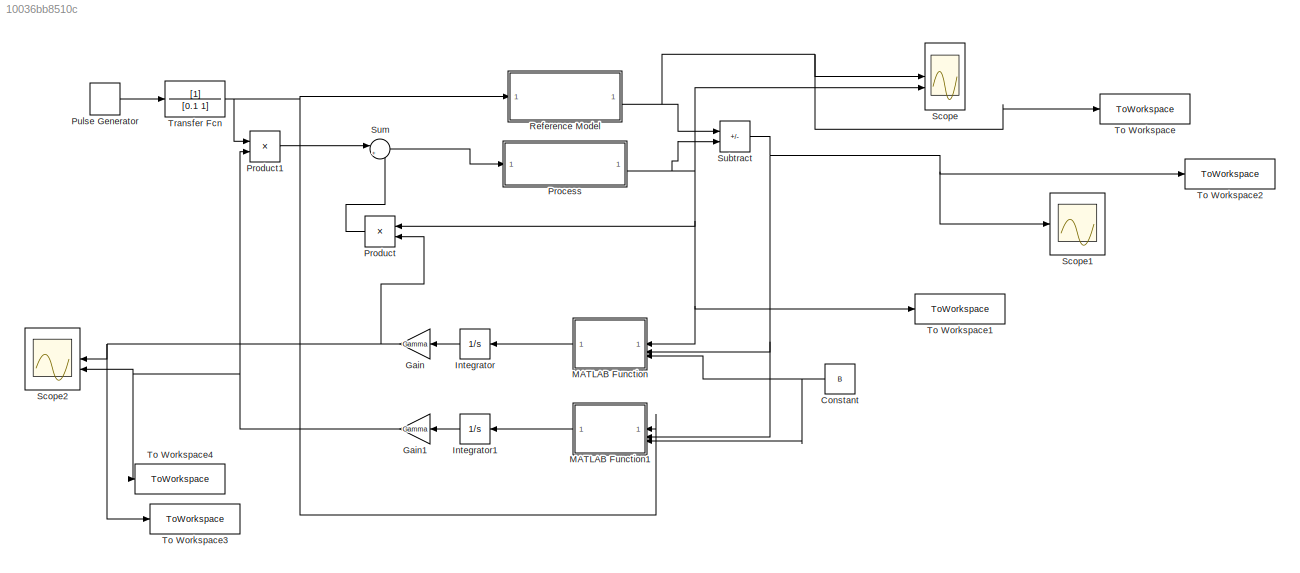
MODEL slx_10036bb8510c
KIND model
CONFIG AbsTol = auto
CONFIG EnableMultiTasking = off
CONFIG FixedStep = 0.001
CONFIG MaxStep = auto
CONFIG MinStep = auto
CONFIG RelTol = 1e-3
CONFIG SampleTimeConstraint = Unconstrained
CONFIG SolverName = ode1be
CONFIG StartTime = 0.0
CONFIG StopTime = 500
BLOCK [Constant] Constant
  NameLocation = top
  Value = B
BLOCK [Gain] Gain
  Gain = Gamma
  NameLocation = top
BLOCK [Gain] Gain1
  Gain = Gamma
  NameLocation = top
BLOCK [Integrator] Integrator
BLOCK [Integrator] Integrator1
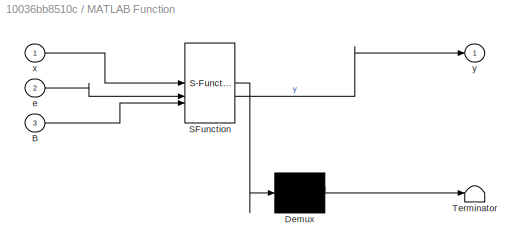
BLOCK [SubSystem] MATLAB Function
  ErrorFcn = Stateflow.Translate.translate
  NameLocation = top
  PermitHierarchicalResolution = ExplicitOnly
  SFBlockType = MATLAB Function
  TreatAsAtomicUnit = on
BLOCK [Demux] MATLAB Function/ Demux 
  Outputs = 1
BLOCK [S-Function] MATLAB Function/ SFunction 
  EnableBusSupport = off
  FunctionName = sf_sfun
  PortCounts = [3 2]
  SFcnIsStateOwnerBlock = off
  SFunctionDeploymentMode = off
  Tag = Stateflow S-Function 2
BLOCK [Terminator] MATLAB Function/ Terminator 
BLOCK [Inport] MATLAB Function/B
  Port = 3
BLOCK [Inport] MATLAB Function/e
  Port = 2
BLOCK [Inport] MATLAB Function/x
BLOCK [Outport] MATLAB Function/y
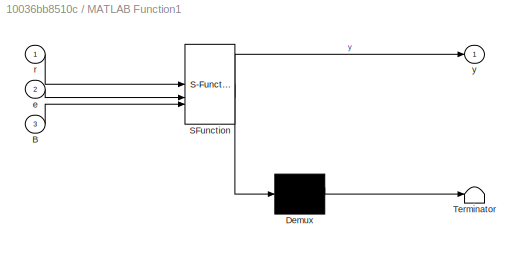
BLOCK [SubSystem] MATLAB Function1
  ErrorFcn = Stateflow.Translate.translate
  NameLocation = top
  PermitHierarchicalResolution = ExplicitOnly
  SFBlockType = MATLAB Function
  TreatAsAtomicUnit = on
BLOCK [Demux] MATLAB Function1/ Demux 
  Outputs = 1
BLOCK [S-Function] MATLAB Function1/ SFunction 
  EnableBusSupport = off
  FunctionName = sf_sfun
  PortCounts = [3 2]
  SFcnIsStateOwnerBlock = off
  SFunctionDeploymentMode = off
  Tag = Stateflow S-Function 1
BLOCK [Terminator] MATLAB Function1/ Terminator 
BLOCK [Inport] MATLAB Function1/B
  Port = 3
BLOCK [Inport] MATLAB Function1/e
  Port = 2
BLOCK [Inport] MATLAB Function1/r
BLOCK [Outport] MATLAB Function1/y
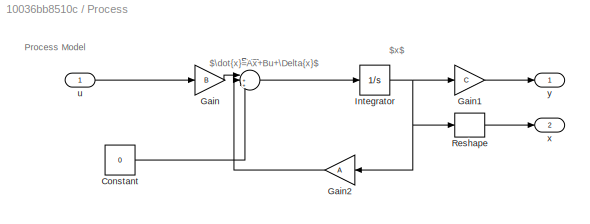
BLOCK [SubSystem] Process
BLOCK [Constant] Process/Constant
  Value = 0
BLOCK [Gain] Process/Gain
  Gain = B
  Multiplication = Matrix(K*u)
BLOCK [Gain] Process/Gain1
  Gain = C
  Multiplication = Matrix(K*u)
BLOCK [Gain] Process/Gain2
  Gain = A
  Multiplication = Matrix(K*u)
  NameLocation = top
BLOCK [Integrator] Process/Integrator
BLOCK [Reshape] Process/Reshape
  OutputDimensionality = Column vector (2-D)
BLOCK [Sum] Process/Sum
  Inputs = |+++
BLOCK [Inport] Process/u
BLOCK [Outport] Process/x
  Port = 2
BLOCK [Outport] Process/y
BLOCK [Product] Product
  NameLocation = top
BLOCK [Product] Product1
BLOCK [DiscretePulseGenerator] Pulse Generator
  Period = 25
  PulseType = Time based
  PulseWidth = 50
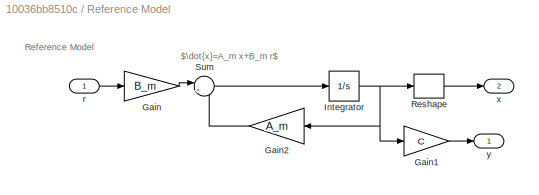
BLOCK [SubSystem] Reference Model
BLOCK [Gain] Reference Model/Gain
  Gain = B_m
  Multiplication = Matrix(K*u)
BLOCK [Gain] Reference Model/Gain1
  Gain = C
  Multiplication = Matrix(K*u)
BLOCK [Gain] Reference Model/Gain2
  Gain = A_m
  Multiplication = Matrix(K*u)
  NameLocation = top
BLOCK [Integrator] Reference Model/Integrator
BLOCK [Reshape] Reference Model/Reshape
  OutputDimensionality = Column vector (2-D)
BLOCK [Sum] Reference Model/Sum
  Inputs = |++
BLOCK [Inport] Reference Model/r
BLOCK [Outport] Reference Model/x
  Port = 2
BLOCK [Outport] Reference Model/y
BLOCK [Scope] Scope
  ActiveDisplayYMaximum = 1.2037276009533862
  ActiveDisplayYMinimum = -0.13374751121704287
  Floating = off
  GraphicalSettings = {"Style":{"BackgroundColor":[0.12941176470588237,0.12941176470588237,0.12941176470588237],"AxesColor":[0.07058823529411765,0.07058823529411765,0.07058823529411765],"LabelsColor":[0.8509803921568627,0.8509803921568627,0.8509803921568627],"PreserveColors":false,"Visible":[true,true],"LineStyle":["-","-"],"LineWidth":[1.5,1.5],"BarWidth":[0.9,0.9],"LineColor":["auto","auto"],"LineFaceAlpha":[1,1],"Li...<+2138ch>
  MultipleDisplayCache = [{"MaxYLimMag":1.2037276009533862,"MaxYLimReal":1.2037276009533862,"MinYLimMag":0,"MinYLimReal":-0.13374751121704287,"PlotAsMagnitudePhase":false,"ShowGrid":true,"ShowLegend":true,"Title":"%<SignalLabel>","YLabel":""}]
  NumInputPorts = 2
  ScopeFrameLocation = window
  ShowLegend = on
  WasSavedAsWebScope = on
  WindowPosition = [1199.000000,286.000000,1876.000000,669.000000,]
BLOCK [Scope] Scope1
  ActiveDisplayYMaximum = 0.873695940366499
  ActiveDisplayYMinimum = -0.90995340165672234
  DataLoggingVariableName = ScopeData1
  Floating = off
  GraphicalSettings = {"Style":{"BackgroundColor":[0.12941176470588237,0.12941176470588237,0.12941176470588237],"AxesColor":[0.07058823529411765,0.07058823529411765,0.07058823529411765],"LabelsColor":[0.8509803921568627,0.8509803921568627,0.8509803921568627],"PreserveColors":false,"Visible":[true,true],"LineStyle":["-","-"],"LineWidth":[1.5,1.5],"BarWidth":[0.9,0.9],"LineColor":["auto","auto"],"LineFaceAlpha":[1,1],"Li...<+2116ch>
  MultipleDisplayCache = [{"MaxYLimMag":0.90995340165672234,"MaxYLimReal":0.873695940366499,"MinYLimMag":0,"MinYLimReal":-0.90995340165672234,"PlotAsMagnitudePhase":false,"ShowGrid":true,"ShowLegend":true,"Title":"%<SignalLabel>","YLabel":""}]
  NumInputPorts = 2
  ScopeFrameLocation = window
  ShowLegend = on
  WasSavedAsWebScope = on
  WindowPosition = [1411.000000,117.000000,1613.000000,921.000000,]
BLOCK [Scope] Scope2
  ActiveDisplayYMaximum = 4.2607744567599939
  ActiveDisplayYMinimum = -2.938777719570826
  DataLoggingVariableName = ScopeData2
  Floating = off
  GraphicalSettings = {"Style":{"BackgroundColor":[0.12941176470588237,0.12941176470588237,0.12941176470588237],"AxesColor":[0.07058823529411765,0.07058823529411765,0.07058823529411765],"LabelsColor":[0.8509803921568627,0.8509803921568627,0.8509803921568627],"PreserveColors":false,"Visible":[true,true],"LineStyle":["-","-"],"LineWidth":[1.5,1.5],"BarWidth":[0.9,0.9],"LineColor":["auto","auto"],"LineFaceAlpha":[1,1],"Li...<+2096ch>
  MultipleDisplayCache = [{"MaxYLimMag":4.2607744567599939,"MaxYLimReal":4.2607744567599939,"MinYLimMag":0,"MinYLimReal":-2.938777719570826,"PlotAsMagnitudePhase":false,"ShowGrid":true,"ShowLegend":true,"Title":"%<SignalLabel>","YLabel":""}]
  NameLocation = top
  NumInputPorts = 2
  ScopeFrameLocation = window
  ShowLegend = on
  WasSavedAsWebScope = on
  WindowPosition = [818.000000,208.000000,1613.000000,921.000000,]
BLOCK [Sum] Subtract
  IconShape = rectangular
  Inputs = -+
BLOCK [Sum] Sum
  Inputs = |++
BLOCK [ToWorkspace] To Workspace
  FixptAsFi = on
  MaxDataPoints = inf
  SampleTime = -1
  SaveFormat = Timeseries
  VariableName = xm
BLOCK [ToWorkspace] To Workspace1
  FixptAsFi = on
  MaxDataPoints = inf
  SampleTime = -1
  SaveFormat = Timeseries
  VariableName = x
BLOCK [ToWorkspace] To Workspace2
  FixptAsFi = on
  MaxDataPoints = inf
  SampleTime = -1
  SaveFormat = Timeseries
  VariableName = e
BLOCK [ToWorkspace] To Workspace3
  FixptAsFi = on
  MaxDataPoints = inf
  SampleTime = -1
  SaveFormat = Timeseries
  VariableName = Kx_hat
BLOCK [ToWorkspace] To Workspace4
  FixptAsFi = on
  MaxDataPoints = inf
  SampleTime = -1
  SaveFormat = Timeseries
  VariableName = Kr_hat
BLOCK [TransferFcn] Transfer Fcn
  Denominator = [0.1 1]
ANNOTATION Process: $\dot{x}=Ax+Bu+\Delta{x}$
ANNOTATION Process: $x$
ANNOTATION Process: Process Model
ANNOTATION Reference Model: $\dot{x}=A_m x+B_m r$
ANNOTATION Reference Model: Reference Model
NET Constant:1 -> MATLAB Function1:3, MATLAB Function:3
NET Gain1:1 -> Product1:2, Scope2:2, To Workspace4:1
NET Gain:1 -> Product:2, Scope2:1, To Workspace3:1
LINE Integrator1:1 -> Gain1:1
LINE Integrator:1 -> Gain:1
LINE MATLAB Function1:1 -> Integrator1:1
LINE MATLAB Function:1 -> Integrator:1
LINE Process/Constant:1 -> Process/Sum:3
LINE Process/Gain1:1 -> Process/y:1
LINE Process/Gain2:1 -> Process/Sum:2
LINE Process/Gain:1 -> Process/Sum:1
NET Process/Integrator:1 -> Process/Gain1:1, Process/Gain2:1, Process/Reshape:1
LINE Process/Reshape:1 -> Process/x:1
LINE Process/Sum:1 -> Process/Integrator:1
LINE Process/u:1 -> Process/Gain:1
NET Process:2 -> MATLAB Function:1, Product:1, Scope:2, Subtract:2, To Workspace1:1
LINE Product1:1 -> Sum:1
LINE Product:1 -> Sum:2
LINE Pulse Generator:1 -> Transfer Fcn:1
LINE Reference Model/Gain1:1 -> Reference Model/y:1
LINE Reference Model/Gain2:1 -> Reference Model/Sum:2
LINE Reference Model/Gain:1 -> Reference Model/Sum:1
NET Reference Model/Integrator:1 -> Reference Model/Gain1:1, Reference Model/Gain2:1, Reference Model/Reshape:1
LINE Reference Model/Reshape:1 -> Reference Model/x:1
LINE Reference Model/Sum:1 -> Reference Model/Integrator:1
LINE Reference Model/r:1 -> Reference Model/Gain:1
NET Reference Model:2 -> Scope:1, Subtract:1, To Workspace:1
NET Subtract:1 -> MATLAB Function1:2, MATLAB Function:2, Scope1:1, To Workspace2:1
LINE Sum:1 -> Process:1
NET Transfer Fcn:1 -> MATLAB Function1:1, Product1:1, Reference Model:1
note: NET lines group one-source signal fan-out (src -> all destinations, sorted); 1:1 wires keep LINE
CHART MATLAB Function states=1 transitions=1
  STATE_LABEL 'eML_blk_kernel()'
  STATE_LABEL 'SCRIPT:\nfunction y = fcn(x, e, B)\n\ny = -e*B*x;\n'
CHART MATLAB Function1 states=1 transitions=1
  STATE_LABEL 'eML_blk_kernel()'
  STATE_LABEL 'SCRIPT:\nfunction y = fcn(r, e, B)\n\ny = -e*B*r;'
CHART  states=0 transitions=0
CHART  states=0 transitions=0
